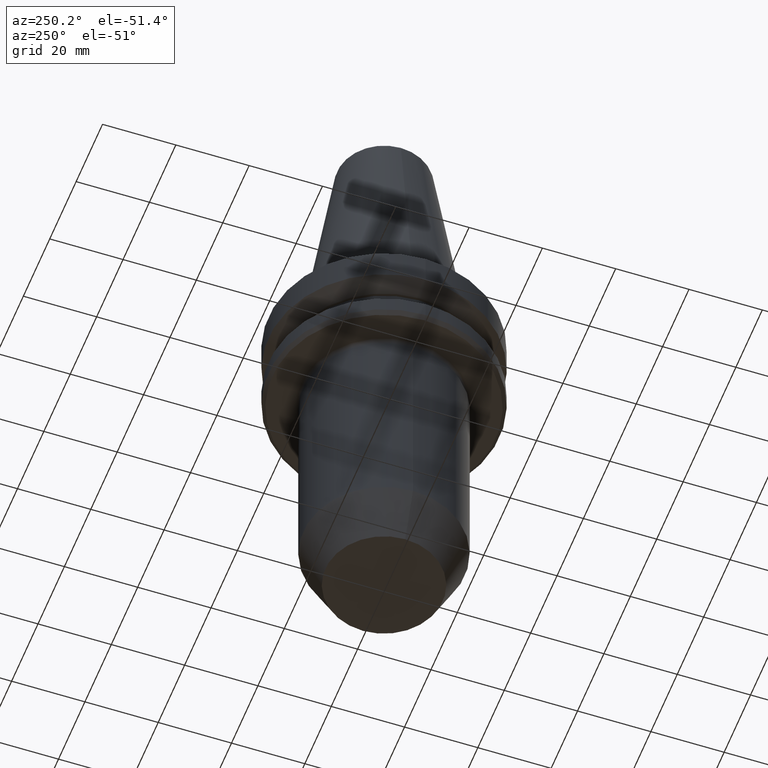
[diagram: clean part render]
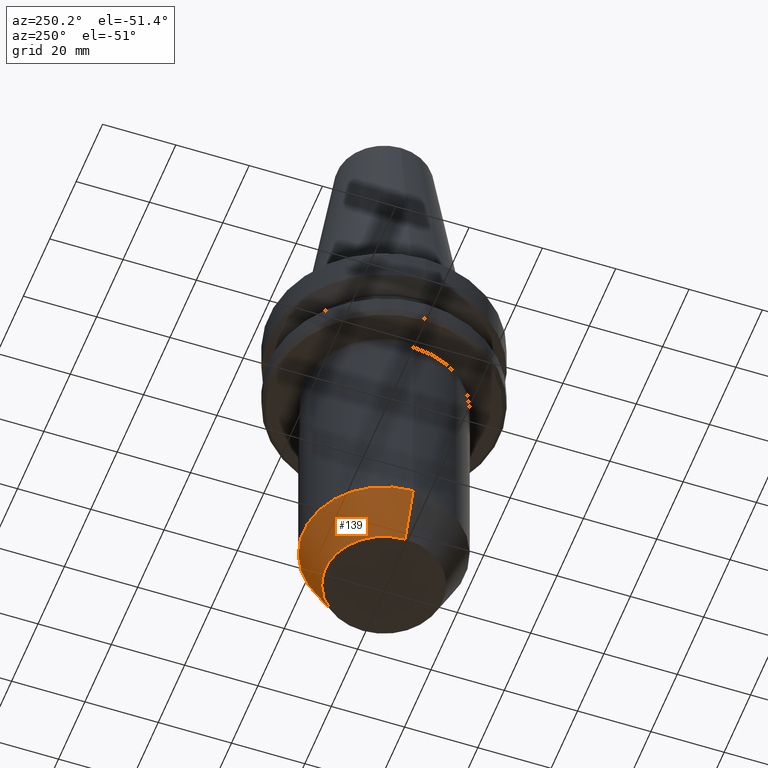
[diagram: same view with one face highlighted and labeled with its STEP entity id]
A machine part, auxiliary view. The second image highlights one B-rep face of the part: STEP entity #139.
In plain terms, the highlighted conical surface has half-angle 25 deg.
Its self-contained STEP definition (entity closure, byte-faithful):
#2 = CARTESIAN_POINT ( 'NONE',  ( 0.0000000000000000000, 0.0000000000000000000, -99.31128678834039600 ) ) ;
#40 = CARTESIAN_POINT ( 'NONE',  ( 16.00000000000000000, 0.0000000000000000000, -99.31128678834039600 ) ) ;
#52 = AXIS2_PLACEMENT_3D ( 'NONE', #2, #773, #107 ) ;
#107 = DIRECTION ( 'NONE',  ( 1.000000000000000000, 0.0000000000000000000, 0.0000000000000000000 ) ) ;
#126 = CARTESIAN_POINT ( 'NONE',  ( 0.0000000000000000000, 0.0000000000000000000, -99.31128678834039600 ) ) ;
#139 = ADVANCED_FACE ( 'NONE', ( #771 ), #956, .T. ) ;
#144 = ORIENTED_EDGE ( 'NONE', *, *, #882, .T. ) ;
#146 = VECTOR ( 'NONE', #948, 1000.000000000000100 ) ;
#158 = AXIS2_PLACEMENT_3D ( 'NONE', #126, #714, #220 ) ;
#193 = CIRCLE ( 'NONE', #362, 22.00000000000000000 ) ;
#220 = DIRECTION ( 'NONE',  ( 1.000000000000000000, 0.0000000000000000000, 0.0000000000000000000 ) ) ;
#231 = CIRCLE ( 'NONE', #158, 16.00000000000000000 ) ;
#241 = VERTEX_POINT ( 'NONE', #442 ) ;
#303 = CARTESIAN_POINT ( 'NONE',  ( 0.0000000000000000000, 0.0000000000000000000, -86.44424526528283100 ) ) ;
#306 = CARTESIAN_POINT ( 'NONE',  ( -16.00000000000000000, 1.959434878635765100E-015, -99.31128678834039600 ) ) ;
#326 = ORIENTED_EDGE ( 'NONE', *, *, #890, .F. ) ;
#333 = DIRECTION ( 'NONE',  ( -0.0000000000000000000, -0.0000000000000000000, 1.000000000000000000 ) ) ;
#335 = ORIENTED_EDGE ( 'NONE', *, *, #699, .F. ) ;
#362 = AXIS2_PLACEMENT_3D ( 'NONE', #303, #333, #961 ) ;
#378 = LINE ( 'NONE', #40, #146 ) ;
#381 = VERTEX_POINT ( 'NONE', #668 ) ;
#398 = DIRECTION ( 'NONE',  ( -0.4226182617406936100, 5.175581015019586700E-017, 0.9063077870366526000 ) ) ;
#414 = VERTEX_POINT ( 'NONE', #760 ) ;
#442 = CARTESIAN_POINT ( 'NONE',  ( -22.00000000000000000, 2.694222958124176800E-015, -86.44424526528283100 ) ) ;
#659 = ORIENTED_EDGE ( 'NONE', *, *, #886, .T. ) ;
#668 = CARTESIAN_POINT ( 'NONE',  ( 16.00000000000000000, 0.0000000000000000000, -99.31128678834039600 ) ) ;
#692 = CARTESIAN_POINT ( 'NONE',  ( -16.00000000000000000, 2.326828918379971000E-015, -99.31128678834039600 ) ) ;
#699 = EDGE_CURVE ( 'NONE', #414, #241, #193, .T. ) ;
#714 = DIRECTION ( 'NONE',  ( -0.0000000000000000000, -0.0000000000000000000, 1.000000000000000000 ) ) ;
#760 = CARTESIAN_POINT ( 'NONE',  ( 22.00000000000000000, 0.0000000000000000000, -86.44424526528283100 ) ) ;
#771 = FACE_OUTER_BOUND ( 'NONE', #923, .T. ) ;
#773 = DIRECTION ( 'NONE',  ( -0.0000000000000000000, -0.0000000000000000000, 1.000000000000000000 ) ) ;
#782 = VERTEX_POINT ( 'NONE', #692 ) ;
#805 = VECTOR ( 'NONE', #398, 1000.000000000000100 ) ;
#810 = LINE ( 'NONE', #306, #805 ) ;
#882 = EDGE_CURVE ( 'NONE', #381, #782, #231, .T. ) ;
#886 = EDGE_CURVE ( 'NONE', #782, #241, #810, .T. ) ;
#890 = EDGE_CURVE ( 'NONE', #381, #414, #378, .T. ) ;
#923 = EDGE_LOOP ( 'NONE', ( #144, #659, #335, #326 ) ) ;
#948 = DIRECTION ( 'NONE',  ( 0.4226182617406936100, 0.0000000000000000000, 0.9063077870366526000 ) ) ;
#956 = CONICAL_SURFACE ( 'NONE', #52, 16.00000000000000000, 0.4363323129985759400 ) ;
#961 = DIRECTION ( 'NONE',  ( 1.000000000000000000, 0.0000000000000000000, 0.0000000000000000000 ) ) ;